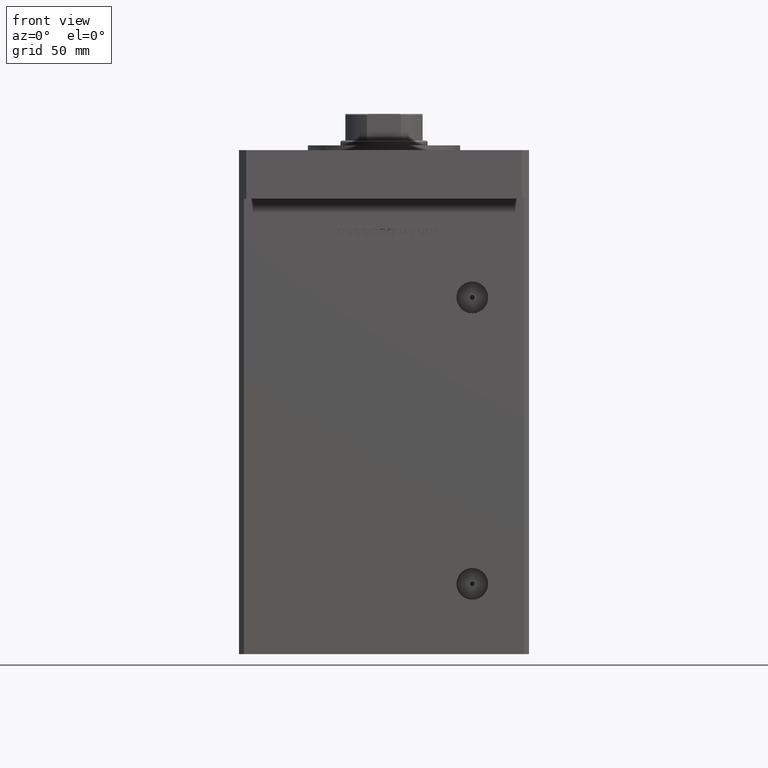
[diagram: clean part render]
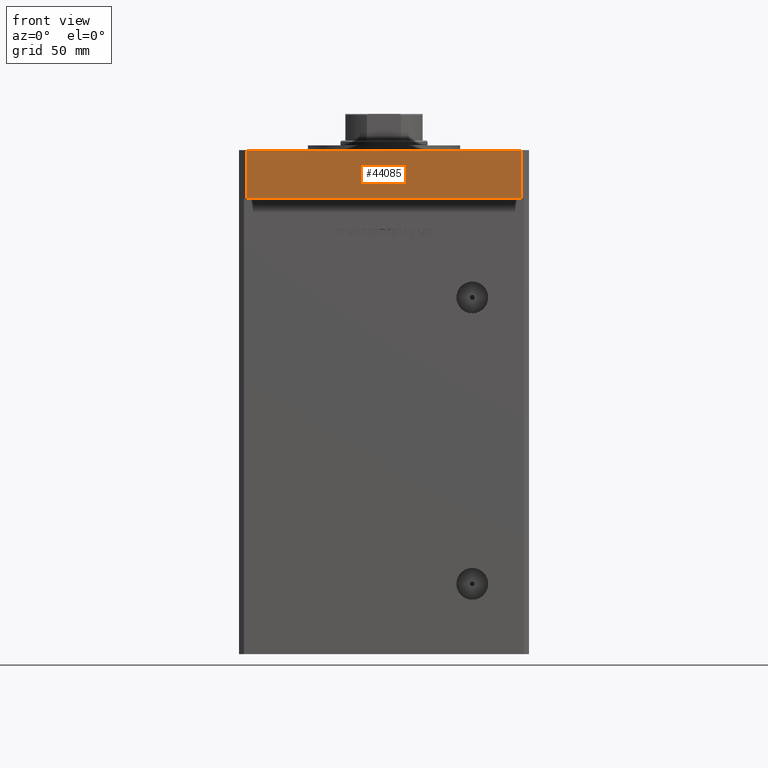
[diagram: same view with one face highlighted and labeled with its STEP entity id]
A machine part, front view. The second image highlights one B-rep face of the part: STEP entity #44085.
In plain terms, the highlighted planar face has unit normal (-0, 1, 0).
Its self-contained STEP definition (entity closure, byte-faithful):
#1174 = CARTESIAN_POINT ( 'NONE',  ( -56.99999999999999289, -82.50000000000001421, 20.00000000000000000 ) ) ;
#1672 = EDGE_CURVE ( 'NONE', #24959, #1878, #34784, .T. ) ;
#1878 = VERTEX_POINT ( 'NONE', #4806 ) ;
#3053 = FACE_OUTER_BOUND ( 'NONE', #20429, .T. ) ;
#4806 = CARTESIAN_POINT ( 'NONE',  ( 57.00000000000000711, -82.49999999999990052, 0.000000000000000000 ) ) ;
#6599 = CARTESIAN_POINT ( 'NONE',  ( -56.99999999999999289, -82.50000000000001421, 20.00000000000000000 ) ) ;
#8556 = LINE ( 'NONE', #12372, #18888 ) ;
#12372 = CARTESIAN_POINT ( 'NONE',  ( 57.00000000000000711, -82.49999999999990052, 20.00000000000000000 ) ) ;
#13553 = ORIENTED_EDGE ( 'NONE', *, *, #49319, .F. ) ;
#14668 = ORIENTED_EDGE ( 'NONE', *, *, #31444, .T. ) ;
#17103 = LINE ( 'NONE', #46745, #19841 ) ;
#18575 = DIRECTION ( 'NONE',  ( -9.738798461624180871E-16, 1.000000000000000000, 0.000000000000000000 ) ) ;
#18888 = VECTOR ( 'NONE', #34084, 1000.000000000000000 ) ;
#19841 = VECTOR ( 'NONE', #26364, 1000.000000000000000 ) ;
#20429 = EDGE_LOOP ( 'NONE', ( #24250, #52520, #13553, #14668 ) ) ;
#21361 = CARTESIAN_POINT ( 'NONE',  ( -56.99999999999999289, -82.50000000000001421, 20.00000000000000000 ) ) ;
#21562 = VECTOR ( 'NONE', #42565, 1000.000000000000000 ) ;
#24250 = ORIENTED_EDGE ( 'NONE', *, *, #1672, .T. ) ;
#24959 = VERTEX_POINT ( 'NONE', #53687 ) ;
#26364 = DIRECTION ( 'NONE',  ( 1.000000000000000000, 9.738798461624180871E-16, 0.000000000000000000 ) ) ;
#26917 = CARTESIAN_POINT ( 'NONE',  ( -56.99999999999999289, -82.50000000000001421, 0.000000000000000000 ) ) ;
#29756 = VERTEX_POINT ( 'NONE', #1174 ) ;
#30045 = LINE ( 'NONE', #21361, #21562 ) ;
#30702 = DIRECTION ( 'NONE',  ( 1.000000000000000000, 9.738798461624180871E-16, 0.000000000000000000 ) ) ;
#31444 = EDGE_CURVE ( 'NONE', #29756, #24959, #30045, .T. ) ;
#34084 = DIRECTION ( 'NONE',  ( -0.000000000000000000, -0.000000000000000000, -1.000000000000000000 ) ) ;
#34784 = LINE ( 'NONE', #26917, #38899 ) ;
#34933 = CARTESIAN_POINT ( 'NONE',  ( 57.00000000000000711, -82.49999999999990052, 20.00000000000000000 ) ) ;
#38667 = VERTEX_POINT ( 'NONE', #34933 ) ;
#38899 = VECTOR ( 'NONE', #30702, 1000.000000000000000 ) ;
#42565 = DIRECTION ( 'NONE',  ( -0.000000000000000000, -0.000000000000000000, -1.000000000000000000 ) ) ;
#43323 = DIRECTION ( 'NONE',  ( -1.000000000000000000, -9.738798461624180871E-16, 0.000000000000000000 ) ) ;
#43587 = PLANE ( 'NONE',  #52831 ) ;
#44085 = ADVANCED_FACE ( 'NONE', ( #3053 ), #43587, .F. ) ;
#46406 = EDGE_CURVE ( 'NONE', #38667, #1878, #8556, .T. ) ;
#46745 = CARTESIAN_POINT ( 'NONE',  ( -56.99999999999999289, -82.50000000000001421, 20.00000000000000000 ) ) ;
#49319 = EDGE_CURVE ( 'NONE', #29756, #38667, #17103, .T. ) ;
#52520 = ORIENTED_EDGE ( 'NONE', *, *, #46406, .F. ) ;
#52831 = AXIS2_PLACEMENT_3D ( 'NONE', #6599, #18575, #43323 ) ;
#53687 = CARTESIAN_POINT ( 'NONE',  ( -56.99999999999999289, -82.50000000000001421, 0.000000000000000000 ) ) ;